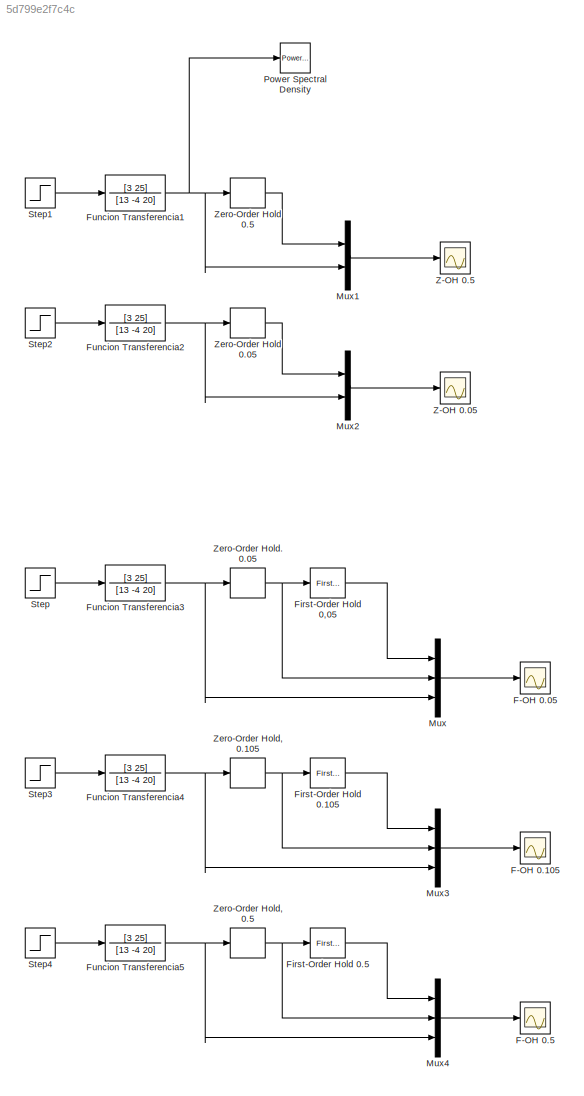
MODEL slx_5d799e2f7c4c
KIND model
CONFIG AbsTol = auto
CONFIG EnableMultiTasking = off
CONFIG FixedStep = auto
CONFIG MaxStep = auto
CONFIG MinStep = auto
CONFIG RelTol = 1e-3
CONFIG SampleTimeConstraint = Unconstrained
CONFIG Solver = VariableStepAuto
CONFIG SolverName = VariableStepAuto
CONFIG StartTime = 0.0
CONFIG StopTime = 10.0
BLOCK [Scope] F-OH 0.05
  NumInputPorts = 1
  Ports = [1]
  ScopeSpecificationString = Simulink.scopes.TimeScopeBlockCfg('CurrentConfiguration', extmgr.ConfigurationSet(extmgr.Configuration('Core','General UI',true),extmgr.Configuration('Core','Source UI',true),extmgr.Configuration('Sources','WiredSimulink',true),extmgr.Configuration('Visuals','Time Domain',true,'SerializedDisplays',{struct('MinYLimReal','-2.38938','MaxYLimReal','6.23125','YLabelReal','','MinYLimMag','0.00000','MaxY...<+1425ch>
BLOCK [Scope] F-OH 0.105
  NumInputPorts = 1
  Ports = [1]
  ScopeSpecificationString = Simulink.scopes.TimeScopeBlockCfg('CurrentConfiguration', extmgr.ConfigurationSet(extmgr.Configuration('Core','General UI',true),extmgr.Configuration('Core','Source UI',true),extmgr.Configuration('Sources','WiredSimulink',true,'DataLoggingVariableName','ScopeData3'),extmgr.Configuration('Visuals','Time Domain',true,'SerializedDisplays',{struct('MinYLimReal','-2.41504','MaxYLimReal','6.27901','YLab...<+1467ch>
BLOCK [Scope] F-OH 0.5
  NumInputPorts = 1
  Ports = [1]
  ScopeSpecificationString = Simulink.scopes.TimeScopeBlockCfg('CurrentConfiguration', extmgr.ConfigurationSet(extmgr.Configuration('Core','General UI',true),extmgr.Configuration('Core','Source UI',true),extmgr.Configuration('Sources','WiredSimulink',true,'DataLoggingVariableName','ScopeData4'),extmgr.Configuration('Visuals','Time Domain',true,'SerializedDisplays',{struct('MinYLimReal','-3.32427','MaxYLimReal','7.43114','YLab...<+1480ch>
BLOCK [Reference] First-Order Hold 0,05  REF=simulink/Discrete/First-Order
Hold
  DisableCoverage = on
  Ports = [1, 1]
  SourceBlock = simulink/Discrete/First-Order\nHold
  SourceProductBaseCode = SL
  SourceProductName = Simulink
  SourceType = First-Order Hold
BLOCK [Reference] First-Order Hold 0.105  REF=simulink/Discrete/First-Order
Hold
  DisableCoverage = on
  Ports = [1, 1]
  SourceBlock = simulink/Discrete/First-Order\nHold
  SourceProductBaseCode = SL
  SourceProductName = Simulink
  SourceType = First-Order Hold
BLOCK [Reference] First-Order Hold 0.5  REF=simulink/Discrete/First-Order
Hold
  DisableCoverage = on
  Ports = [1, 1]
  SourceBlock = simulink/Discrete/First-Order\nHold
  SourceProductBaseCode = SL
  SourceProductName = Simulink
  SourceType = First-Order Hold
BLOCK [TransferFcn] Funcion Transferencia1
  Denominator = [13 -4 20]
  Numerator = [3 25]
BLOCK [TransferFcn] Funcion Transferencia2
  Denominator = [13 -4 20]
  Numerator = [3 25]
BLOCK [TransferFcn] Funcion Transferencia3
  Denominator = [13 -4 20]
  Numerator = [3 25]
BLOCK [TransferFcn] Funcion Transferencia4
  Denominator = [13 -4 20]
  Numerator = [3 25]
BLOCK [TransferFcn] Funcion Transferencia5
  Denominator = [13 -4 20]
  Numerator = [3 25]
BLOCK [Mux] Mux
  DisplayOption = bar
  Inputs = 3
  Ports = [3, 1]
BLOCK [Mux] Mux1
  DisplayOption = bar
  Inputs = 2
  Ports = [2, 1]
BLOCK [Mux] Mux2
  DisplayOption = bar
  Inputs = 2
  Ports = [2, 1]
BLOCK [Mux] Mux3
  DisplayOption = bar
  Inputs = 3
  Ports = [3, 1]
BLOCK [Mux] Mux4
  DisplayOption = bar
  Inputs = 3
  Ports = [3, 1]
BLOCK [Reference] Power Spectral Density  REF=simulink_extras/Additional
Sinks/Power Spectral
Density
  Ports = [1]
  SourceBlock = simulink_extras/Additional\nSinks/Power Spectral\nDensity
  SourceProductBaseCode = SL
  SourceProductName = Simulink
  SourceType = Power Spectral Density
BLOCK [Step] Step
  SampleTime = 0
BLOCK [Step] Step1
  SampleTime = 0
BLOCK [Step] Step2
  SampleTime = 0
BLOCK [Step] Step3
  SampleTime = 0
BLOCK [Step] Step4
  SampleTime = 0
BLOCK [Scope] Z-OH 0.05
  NumInputPorts = 1
  Ports = [1]
  ScopeSpecificationString = Simulink.scopes.TimeScopeBlockCfg('CurrentConfiguration', extmgr.ConfigurationSet(extmgr.Configuration('Core','General UI',true),extmgr.Configuration('Core','Source UI',true),extmgr.Configuration('Sources','WiredSimulink',true,'DataLoggingVariableName','ScopeData2'),extmgr.Configuration('Visuals','Time Domain',true,'SerializedDisplays',{struct('MinYLimReal','-2.3804','MaxYLimReal','6.21296','YLabe...<+1438ch>
BLOCK [Scope] Z-OH 0.5
  NumInputPorts = 1
  Ports = [1]
  ScopeSpecificationString = Simulink.scopes.TimeScopeBlockCfg('CurrentConfiguration', extmgr.ConfigurationSet(extmgr.Configuration('Core','General UI',true),extmgr.Configuration('Core','Source UI',true),extmgr.Configuration('Sources','WiredSimulink',true,'DataLoggingVariableName','ScopeData1'),extmgr.Configuration('Visuals','Time Domain',true,'TimeAxisLabels','All','SerializedDisplays',{struct('MinYLimReal','-2.3804','MaxYLi...<+1498ch>
BLOCK [ZeroOrderHold] Zero-Order Hold 0.05
  SampleTime = 0.05
BLOCK [ZeroOrderHold] Zero-Order Hold 0.5
  SampleTime = 0.5
BLOCK [ZeroOrderHold] Zero-Order Hold, 0.105
  SampleTime = 0.105
BLOCK [ZeroOrderHold] Zero-Order Hold, 0.5
  SampleTime = 0.5
BLOCK [ZeroOrderHold] Zero-Order Hold. 0.05
  SampleTime = 0.05
LINE First-Order Hold 0,05:1 -> Mux:1
LINE First-Order Hold 0.105:1 -> Mux3:1
LINE First-Order Hold 0.5:1 -> Mux4:1
NET Funcion Transferencia1:1 -> Mux1:2, Power Spectral Density:1, Zero-Order Hold 0.5:1
NET Funcion Transferencia2:1 -> Mux2:2, Zero-Order Hold 0.05:1
NET Funcion Transferencia3:1 -> Mux:3, Zero-Order Hold. 0.05:1
NET Funcion Transferencia4:1 -> Mux3:3, Zero-Order Hold, 0.105:1
NET Funcion Transferencia5:1 -> Mux4:3, Zero-Order Hold, 0.5:1
LINE Mux1:1 -> Z-OH 0.5:1
LINE Mux2:1 -> Z-OH 0.05:1
LINE Mux3:1 -> F-OH 0.105:1
LINE Mux4:1 -> F-OH 0.5:1
LINE Mux:1 -> F-OH 0.05:1
LINE Step1:1 -> Funcion Transferencia1:1
LINE Step2:1 -> Funcion Transferencia2:1
LINE Step3:1 -> Funcion Transferencia4:1
LINE Step4:1 -> Funcion Transferencia5:1
LINE Step:1 -> Funcion Transferencia3:1
LINE Zero-Order Hold 0.05:1 -> Mux2:1
LINE Zero-Order Hold 0.5:1 -> Mux1:1
NET Zero-Order Hold, 0.105:1 -> First-Order Hold 0.105:1, Mux3:2
NET Zero-Order Hold, 0.5:1 -> First-Order Hold 0.5:1, Mux4:2
NET Zero-Order Hold. 0.05:1 -> First-Order Hold 0,05:1, Mux:2
note: NET lines group one-source signal fan-out (src -> all destinations, sorted); 1:1 wires keep LINE
